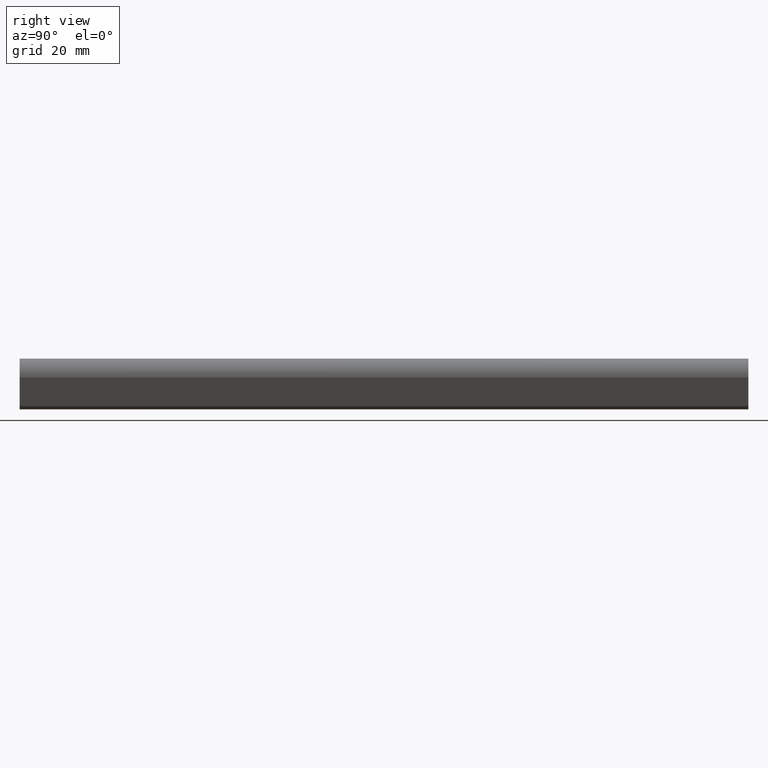
[diagram: clean part render]
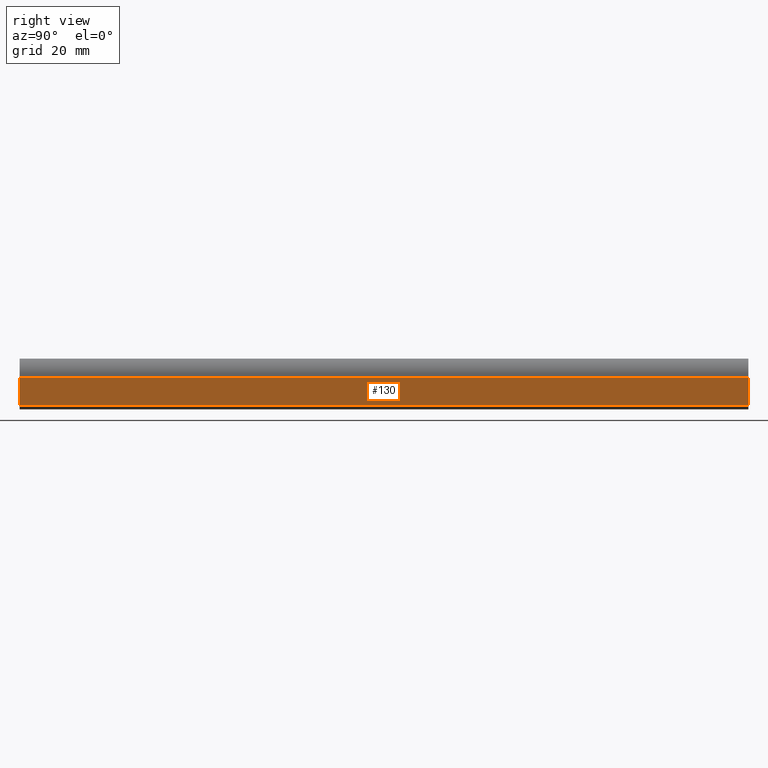
[diagram: same view with one face highlighted and labeled with its STEP entity id]
A machine part, right view. The second image highlights one B-rep face of the part: STEP entity #130.
In plain terms, the highlighted planar face has unit normal (0.9864, 0, -0.1644).
Its self-contained STEP definition (entity closure, byte-faithful):
#130=ADVANCED_FACE('',(#329),#328,.T.);
#328=PLANE('',#583);
#329=FACE_OUTER_BOUND('',#584,.T.);
#580=CARTESIAN_POINT('',(5.37840026923E+00,-1.00000000000E+01,-4.47945387638E+00));
#581=DIRECTION('',(9.86398923087E-01,0.00000000000E+00,-1.64368988966E-01));
#582=DIRECTION('',(-1.64368988966E-01,0.00000000000E+00,-9.86398923087E-01));
#583=AXIS2_PLACEMENT_3D('',#580,#581,#582);
#584=EDGE_LOOP('',(#768,#769,#770,#771));
#768=ORIENTED_EDGE('',*,*,#845,.F.);
#769=ORIENTED_EDGE('',*,*,#901,.F.);
#770=ORIENTED_EDGE('',*,*,#887,.T.);
#771=ORIENTED_EDGE('',*,*,#900,.T.);
#845=EDGE_CURVE('',#959,#966,#967,.T.);
#887=EDGE_CURVE('',#1252,#1245,#1253,.T.);
#900=EDGE_CURVE('',#1245,#966,#1334,.T.);
#901=EDGE_CURVE('',#1252,#959,#1340,.T.);
#959=VERTEX_POINT('',#1547);
#966=VERTEX_POINT('',#1552);
#967=LINE('',#1553,#1554);
#1245=VERTEX_POINT('',#1717);
#1252=VERTEX_POINT('',#1722);
#1253=LINE('',#1723,#1724);
#1334=LINE('',#1766,#1767);
#1340=LINE('',#1769,#1770);
#1547=CARTESIAN_POINT('',(3.96599730772E+00,0.00000000000E+00,-1.29554612362E+01));
#1552=CARTESIAN_POINT('',(5.25000000000E+00,0.00000000000E+00,-5.25000000000E+00));
#1553=CARTESIAN_POINT('',(3.96599730772E+00,0.00000000000E+00,-1.29554612362E+01));
#1554=VECTOR('',#1555,7.81170888964E+00);
#1555=DIRECTION('',(1.64368988966E-01,0.00000000000E+00,9.86398923087E-01));
#1717=CARTESIAN_POINT('',(5.25000000000E+00,2.00000000000E+02,-5.25000000000E+00));
#1722=CARTESIAN_POINT('',(3.96599730772E+00,2.00000000000E+02,-1.29554612362E+01));
#1723=CARTESIAN_POINT('',(3.96599730772E+00,2.00000000000E+02,-1.29554612362E+01));
#1724=VECTOR('',#1725,7.81170888964E+00);
#1725=DIRECTION('',(1.64368988966E-01,0.00000000000E+00,9.86398923087E-01));
#1766=CARTESIAN_POINT('',(5.25000000000E+00,2.00000000000E+02,-5.25000000000E+00));
#1767=VECTOR('',#1768,2.00000000000E+02);
#1768=DIRECTION('',(0.00000000000E+00,-1.00000000000E+00,0.00000000000E+00));
#1769=CARTESIAN_POINT('',(3.96599730772E+00,2.00000000000E+02,-1.29554612362E+01));
#1770=VECTOR('',#1771,2.00000000000E+02);
#1771=DIRECTION('',(0.00000000000E+00,-1.00000000000E+00,0.00000000000E+00));